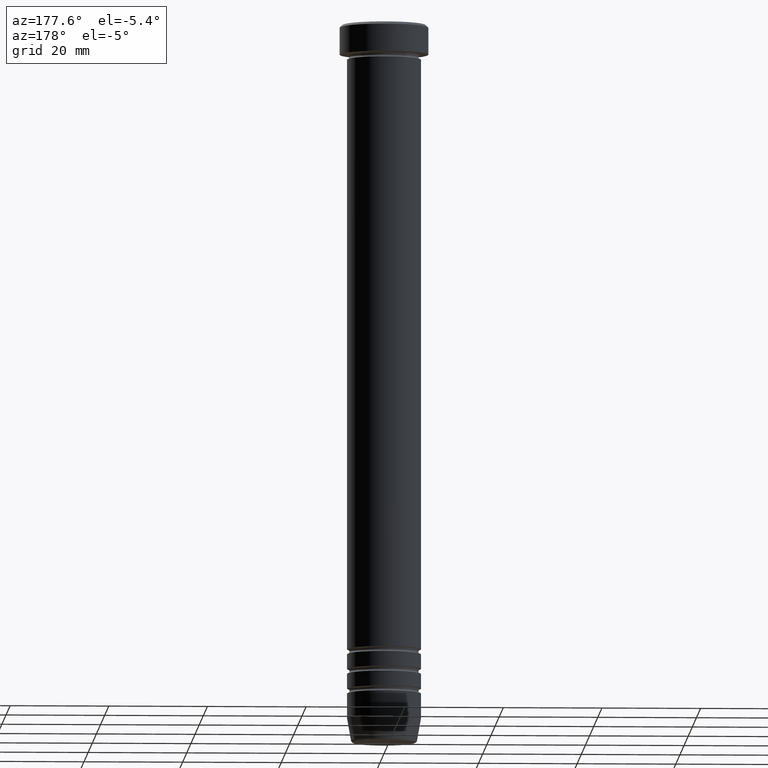
[diagram: clean part render]
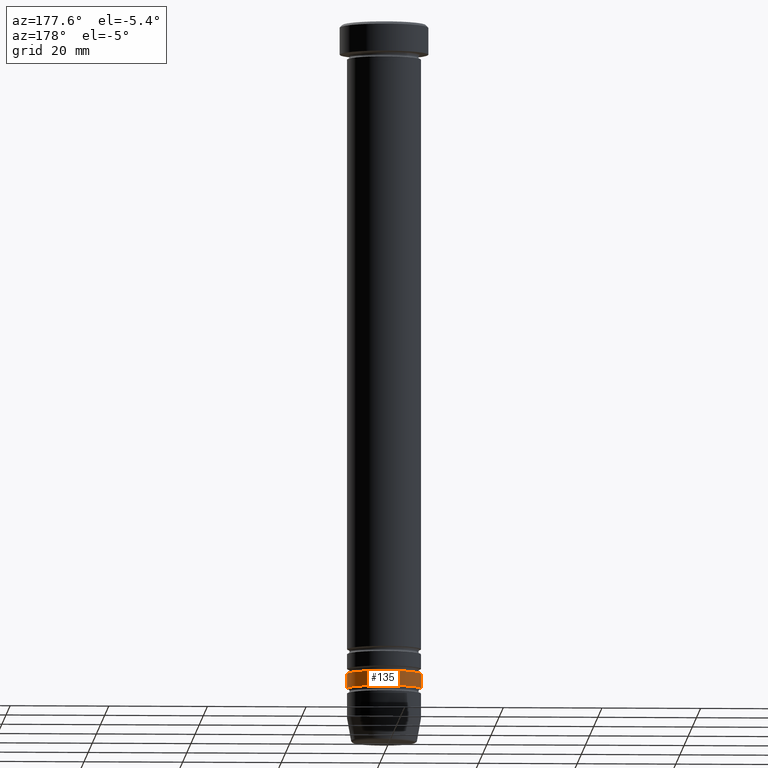
[diagram: same view with one face highlighted and labeled with its STEP entity id]
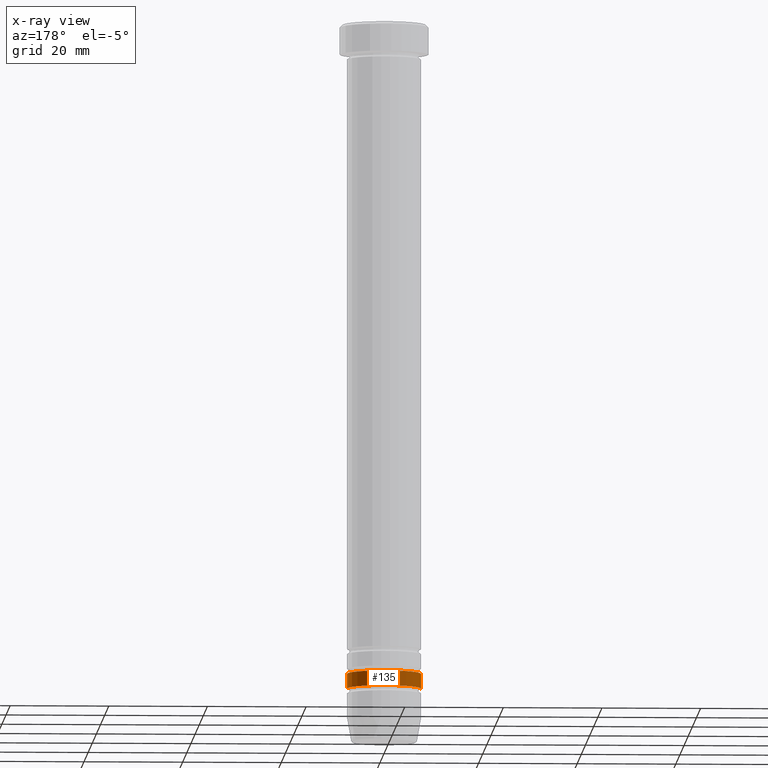
[diagram: x-ray of the same camera — body ghosted, the highlighted face saturated]
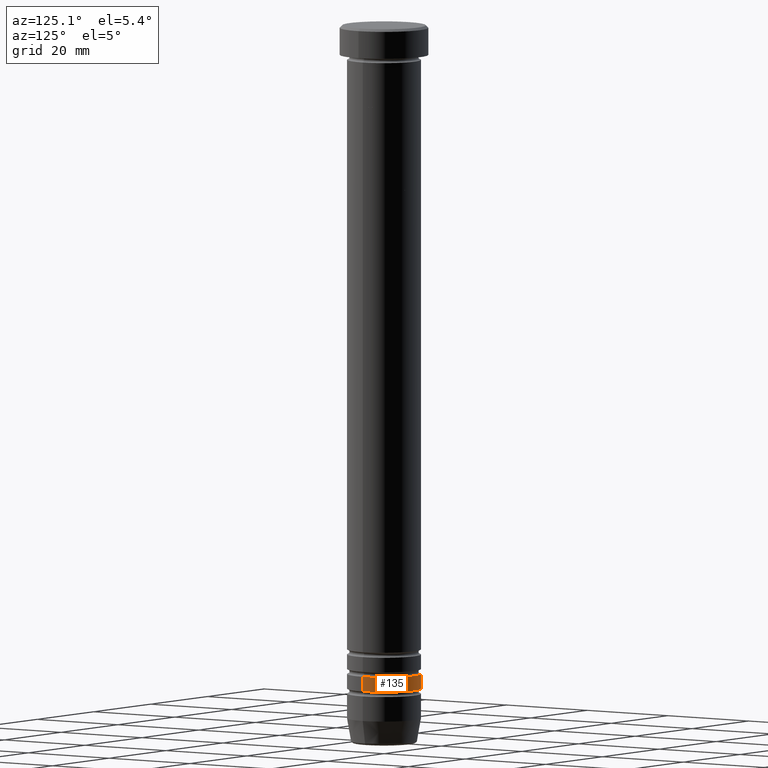
[diagram: same view with one face highlighted and labeled with its STEP entity id]
A machine part, auxiliary view. The second image highlights one B-rep face of the part: STEP entity #135.
The next image is the same camera in x-ray: the body ghosted, the highlighted face saturated — about 0% of this face is hidden behind the body in this view.
A second angle (auxiliary view) of the same face is appended — the face is thin or edge-on in the first view.
In plain terms, the highlighted cylindrical surface (partial cylindrical patch) has radius 7.5 mm, axis along (-0, -0, 1).
Its self-contained STEP definition (entity closure, byte-faithful):
#14 = DIRECTION ( 'NONE',  ( 1.000000000000000000, 0.000000000000000000, 0.000000000000000000 ) ) ;
#69 = VECTOR ( 'NONE', #622, 1000.000000000000000 ) ;
#104 = AXIS2_PLACEMENT_3D ( 'NONE', #978, #524, #14 ) ;
#133 = EDGE_LOOP ( 'NONE', ( #383, #470, #1110, #491 ) ) ;
#135 = ADVANCED_FACE ( 'NONE', ( #617 ), #718, .T. ) ;
#162 = CIRCLE ( 'NONE', #804, 7.499999999999991118 ) ;
#163 = EDGE_CURVE ( 'NONE', #257, #1013, #798, .T. ) ;
#257 = VERTEX_POINT ( 'NONE', #637 ) ;
#275 = CARTESIAN_POINT ( 'NONE',  ( -7.499999999999994671, 9.184850993605142028E-16, 0.000000000000000000 ) ) ;
#303 = VERTEX_POINT ( 'NONE', #839 ) ;
#337 = VECTOR ( 'NONE', #886, 1000.000000000000000 ) ;
#346 = DIRECTION ( 'NONE',  ( 1.000000000000000000, 0.000000000000000000, 0.000000000000000000 ) ) ;
#383 = ORIENTED_EDGE ( 'NONE', *, *, #1092, .T. ) ;
#440 = DIRECTION ( 'NONE',  ( 1.000000000000000000, 0.000000000000000000, 0.000000000000000000 ) ) ;
#470 = ORIENTED_EDGE ( 'NONE', *, *, #596, .T. ) ;
#491 = ORIENTED_EDGE ( 'NONE', *, *, #1097, .F. ) ;
#524 = DIRECTION ( 'NONE',  ( -0.000000000000000000, -0.000000000000000000, 1.000000000000000000 ) ) ;
#596 = EDGE_CURVE ( 'NONE', #701, #1013, #1081, .T. ) ;
#615 = CARTESIAN_POINT ( 'NONE',  ( 0.000000000000000000, 0.000000000000000000, -132.0000000000000284 ) ) ;
#617 = FACE_OUTER_BOUND ( 'NONE', #133, .T. ) ;
#618 = CARTESIAN_POINT ( 'NONE',  ( 0.000000000000000000, 0.000000000000000000, -135.0000000000000000 ) ) ;
#622 = DIRECTION ( 'NONE',  ( -0.000000000000000000, -0.000000000000000000, 1.000000000000000000 ) ) ;
#637 = CARTESIAN_POINT ( 'NONE',  ( 7.499999999999998224, 0.000000000000000000, -132.0000000000000284 ) ) ;
#701 = VERTEX_POINT ( 'NONE', #759 ) ;
#718 = CYLINDRICAL_SURFACE ( 'NONE', #104, 7.499999999999994671 ) ;
#759 = CARTESIAN_POINT ( 'NONE',  ( -7.499999999999991118, 9.184850993605140056E-16, -135.0000000000000000 ) ) ;
#787 = DIRECTION ( 'NONE',  ( -0.000000000000000000, -0.000000000000000000, 1.000000000000000000 ) ) ;
#798 = CIRCLE ( 'NONE', #1029, 7.499999999999998224 ) ;
#804 = AXIS2_PLACEMENT_3D ( 'NONE', #618, #787, #440 ) ;
#839 = CARTESIAN_POINT ( 'NONE',  ( 7.499999999999991118, 0.000000000000000000, -135.0000000000000000 ) ) ;
#886 = DIRECTION ( 'NONE',  ( -0.000000000000000000, -0.000000000000000000, 1.000000000000000000 ) ) ;
#978 = CARTESIAN_POINT ( 'NONE',  ( 0.000000000000000000, 0.000000000000000000, 0.000000000000000000 ) ) ;
#985 = DIRECTION ( 'NONE',  ( -0.000000000000000000, -0.000000000000000000, 1.000000000000000000 ) ) ;
#991 = LINE ( 'NONE', #1149, #337 ) ;
#1013 = VERTEX_POINT ( 'NONE', #1123 ) ;
#1029 = AXIS2_PLACEMENT_3D ( 'NONE', #615, #985, #346 ) ;
#1081 = LINE ( 'NONE', #275, #69 ) ;
#1092 = EDGE_CURVE ( 'NONE', #303, #701, #162, .T. ) ;
#1097 = EDGE_CURVE ( 'NONE', #303, #257, #991, .T. ) ;
#1110 = ORIENTED_EDGE ( 'NONE', *, *, #163, .F. ) ;
#1123 = CARTESIAN_POINT ( 'NONE',  ( -7.499999999999998224, 9.184850993605145972E-16, -132.0000000000000284 ) ) ;
#1149 = CARTESIAN_POINT ( 'NONE',  ( 7.499999999999994671, 0.000000000000000000, 0.000000000000000000 ) ) ;